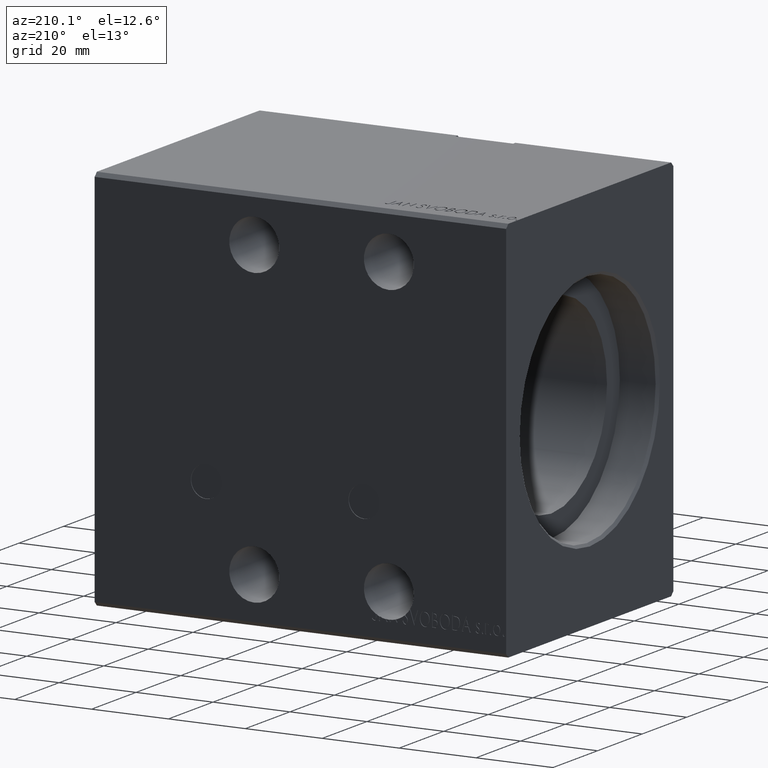
[diagram: clean part render]
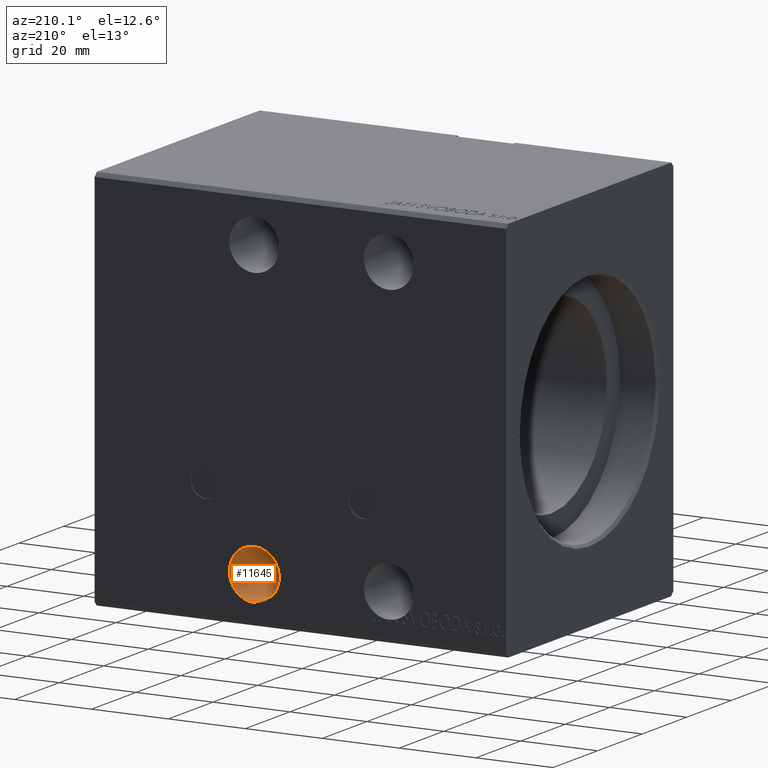
[diagram: same view with one face highlighted and labeled with its STEP entity id]
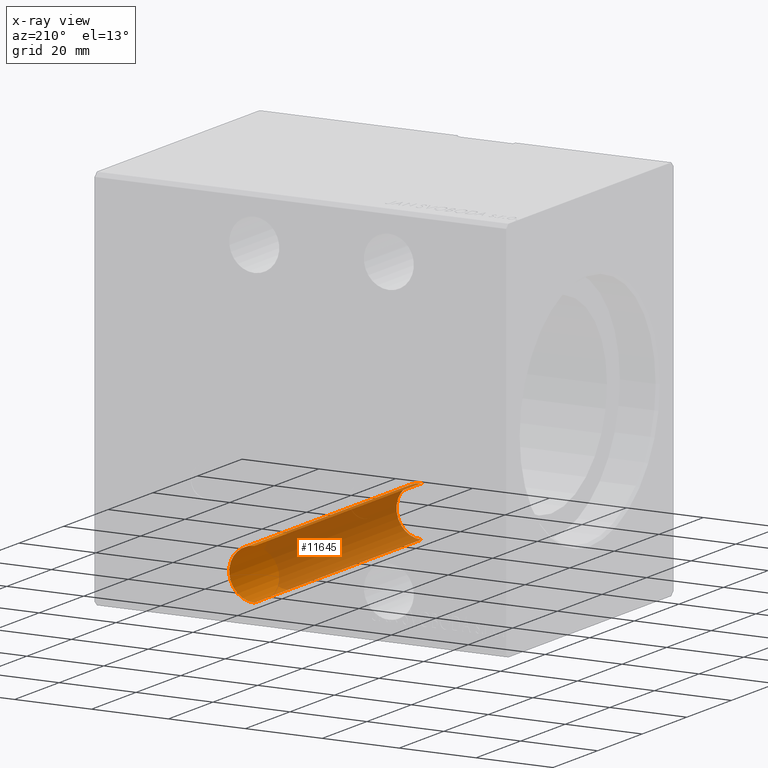
[diagram: x-ray of the same camera — body ghosted, the highlighted face saturated]
A machine part, auxiliary view. The second image highlights one B-rep face of the part: STEP entity #11645.
The next image is the same camera in x-ray: the body ghosted, the highlighted face saturated — about 76% of this face is hidden behind the body in this view.
In plain terms, the highlighted cylindrical surface (edge-blend (fillet) strip) has radius 6.5 mm, axis along (-0, -1, -0).
Its self-contained STEP definition (entity closure, byte-faithful):
#10 = EDGE_CURVE ( 'NONE', #6212, #16439, #40315, .T. ) ;
#961 = CARTESIAN_POINT ( 'NONE',  ( 65.50000000000001421, 37.50000000000002842, -37.99999999999999289 ) ) ;
#1652 = LINE ( 'NONE', #20536, #5941 ) ;
#2144 = LINE ( 'NONE', #34270, #32101 ) ;
#3524 = CARTESIAN_POINT ( 'NONE',  ( 65.50000000000001421, -37.50000000000001421, -44.50000000000000000 ) ) ;
#3606 = AXIS2_PLACEMENT_3D ( 'NONE', #961, #39311, #26888 ) ;
#4007 = EDGE_CURVE ( 'NONE', #14461, #6212, #1652, .T. ) ;
#4559 = AXIS2_PLACEMENT_3D ( 'NONE', #12988, #16089, #25636 ) ;
#4888 = CIRCLE ( 'NONE', #3606, 6.499999999999999112 ) ;
#5941 = VECTOR ( 'NONE', #24265, 1000.000000000000000 ) ;
#6212 = VERTEX_POINT ( 'NONE', #6563 ) ;
#6263 = VERTEX_POINT ( 'NONE', #31121 ) ;
#6563 = CARTESIAN_POINT ( 'NONE',  ( 65.50000000000001421, -37.50000000000001421, -31.50000000000000000 ) ) ;
#10136 = AXIS2_PLACEMENT_3D ( 'NONE', #19643, #38694, #14024 ) ;
#10578 = ORIENTED_EDGE ( 'NONE', *, *, #10, .F. ) ;
#11645 = ADVANCED_FACE ( 'NONE', ( #12609 ), #25261, .F. ) ;
#12609 = FACE_OUTER_BOUND ( 'NONE', #39962, .T. ) ;
#12988 = CARTESIAN_POINT ( 'NONE',  ( 65.50000000000001421, -37.50000000000001421, -38.00000000000000000 ) ) ;
#14024 = DIRECTION ( 'NONE',  ( 0.000000000000000000, 0.000000000000000000, -1.000000000000000000 ) ) ;
#14461 = VERTEX_POINT ( 'NONE', #16866 ) ;
#16089 = DIRECTION ( 'NONE',  ( -0.000000000000000000, 1.000000000000000000, 0.000000000000000000 ) ) ;
#16439 = VERTEX_POINT ( 'NONE', #3524 ) ;
#16505 = ORIENTED_EDGE ( 'NONE', *, *, #4007, .F. ) ;
#16866 = CARTESIAN_POINT ( 'NONE',  ( 65.50000000000001421, 37.50000000000002842, -31.49999999999999289 ) ) ;
#19643 = CARTESIAN_POINT ( 'NONE',  ( 65.50000000000001421, 37.50000000000002842, -37.99999999999999289 ) ) ;
#20536 = CARTESIAN_POINT ( 'NONE',  ( 65.50000000000001421, 37.50000000000002842, -31.49999999999999289 ) ) ;
#22785 = EDGE_CURVE ( 'NONE', #6263, #16439, #2144, .T. ) ;
#24265 = DIRECTION ( 'NONE',  ( -0.000000000000000000, -1.000000000000000000, -5.507058653894625853E-17 ) ) ;
#25261 = CYLINDRICAL_SURFACE ( 'NONE', #10136, 6.499999999999999112 ) ;
#25636 = DIRECTION ( 'NONE',  ( 0.000000000000000000, 0.000000000000000000, 1.000000000000000000 ) ) ;
#26888 = DIRECTION ( 'NONE',  ( 0.000000000000000000, 0.000000000000000000, -1.000000000000000000 ) ) ;
#30543 = EDGE_CURVE ( 'NONE', #6263, #14461, #4888, .T. ) ;
#31121 = CARTESIAN_POINT ( 'NONE',  ( 65.50000000000001421, 37.50000000000002842, -44.49999999999999289 ) ) ;
#32101 = VECTOR ( 'NONE', #40281, 1000.000000000000000 ) ;
#34270 = CARTESIAN_POINT ( 'NONE',  ( 65.50000000000001421, 37.50000000000002842, -44.49999999999999289 ) ) ;
#34861 = ORIENTED_EDGE ( 'NONE', *, *, #30543, .F. ) ;
#36121 = ORIENTED_EDGE ( 'NONE', *, *, #22785, .T. ) ;
#38694 = DIRECTION ( 'NONE',  ( -0.000000000000000000, -1.000000000000000000, -5.507058653894625853E-17 ) ) ;
#39311 = DIRECTION ( 'NONE',  ( 0.000000000000000000, -1.000000000000000000, -5.507058653894625853E-17 ) ) ;
#39962 = EDGE_LOOP ( 'NONE', ( #16505, #34861, #36121, #10578 ) ) ;
#40281 = DIRECTION ( 'NONE',  ( -0.000000000000000000, -1.000000000000000000, -5.507058653894625853E-17 ) ) ;
#40315 = CIRCLE ( 'NONE', #4559, 6.499999999999999112 ) ;